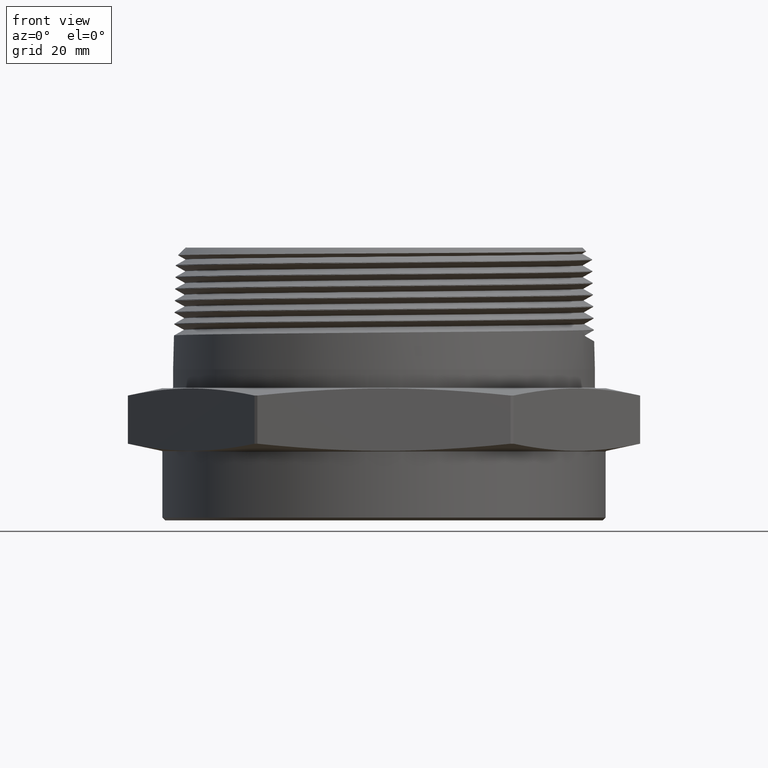
[diagram: clean part render]
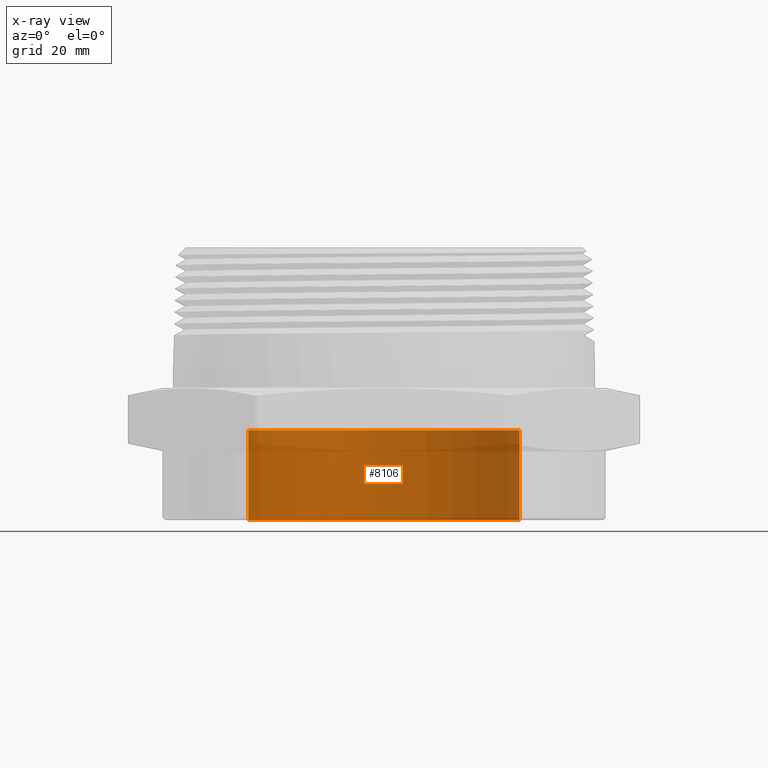
[diagram: x-ray — body ghosted, one internal face saturated and labeled with its STEP entity id]
A machine part, front view, then the same camera in x-ray: the body is ghosted and one INTERNAL B-rep face — a face not visible from any outside direction — is saturated and labeled: STEP entity #8106.
In plain terms, the highlighted cylindrical surface (partial cylindrical patch) has radius 36.703 mm, axis along (-0, -0, -1).
Its self-contained STEP definition (entity closure, byte-faithful):
#378 = AXIS2_PLACEMENT_3D ( 'NONE', #7613, #7609, #7610 ) ;
#621 = EDGE_CURVE ( 'NONE', #2009, #2035, #8017, .T. ) ;
#622 = EDGE_CURVE ( 'NONE', #2009, #2012, #8019, .T. ) ;
#623 = EDGE_CURVE ( 'NONE', #2035, #2036, #8021, .T. ) ;
#624 = EDGE_CURVE ( 'NONE', #2012, #2036, #8024, .T. ) ;
#651 = AXIS2_PLACEMENT_3D ( 'NONE', #3599, #3601, #2604 ) ;
#652 = AXIS2_PLACEMENT_3D ( 'NONE', #2605, #2606, #2607 ) ;
#2009 = VERTEX_POINT ( 'NONE', #2699 ) ;
#2012 = VERTEX_POINT ( 'NONE', #2702 ) ;
#2035 = VERTEX_POINT ( 'NONE', #2725 ) ;
#2036 = VERTEX_POINT ( 'NONE', #2726 ) ;
#2047 = ORIENTED_EDGE ( 'NONE', *, *, #622, .F. ) ;
#2048 = ORIENTED_EDGE ( 'NONE', *, *, #621, .T. ) ;
#2049 = ORIENTED_EDGE ( 'NONE', *, *, #623, .T. ) ;
#2050 = ORIENTED_EDGE ( 'NONE', *, *, #624, .F. ) ;
#2604 = DIRECTION ( 'NONE',  ( 1.000000000000000000, 0.0000000000000000000, 0.0000000000000000000 ) ) ;
#2605 = CARTESIAN_POINT ( 'NONE',  ( 0.0000000000000000000, 0.0000000000000000000, 0.0000000000000000000 ) ) ;
#2606 = DIRECTION ( 'NONE',  ( 0.0000000000000000000, 0.0000000000000000000, 1.000000000000000000 ) ) ;
#2607 = DIRECTION ( 'NONE',  ( 1.000000000000000000, 0.0000000000000000000, 0.0000000000000000000 ) ) ;
#2699 = CARTESIAN_POINT ( 'NONE',  ( 1.444999999999999800, 1.769614624767924500E-016, 0.9599999999999999600 ) ) ;
#2702 = CARTESIAN_POINT ( 'NONE',  ( -1.444999999999999800, 0.0000000000000000000, 0.9599999999999999600 ) ) ;
#2725 = CARTESIAN_POINT ( 'NONE',  ( 1.444999999999999800, 1.769614624767924500E-016, 0.0000000000000000000 ) ) ;
#2726 = CARTESIAN_POINT ( 'NONE',  ( -1.444999999999999800, 0.0000000000000000000, 0.0000000000000000000 ) ) ;
#3557 = FACE_OUTER_BOUND ( 'NONE', #7828, .T. ) ;
#3564 = CYLINDRICAL_SURFACE ( 'NONE', #378, 1.444999999999999800 ) ;
#3578 = CARTESIAN_POINT ( 'NONE',  ( 1.444999999999999800, 1.769614624767924500E-016, 0.9599999999999999600 ) ) ;
#3590 = DIRECTION ( 'NONE',  ( -0.0000000000000000000, -0.0000000000000000000, -1.000000000000000000 ) ) ;
#3593 = CARTESIAN_POINT ( 'NONE',  ( -1.444999999999999800, 0.0000000000000000000, 0.9599999999999999600 ) ) ;
#3596 = DIRECTION ( 'NONE',  ( -0.0000000000000000000, -0.0000000000000000000, -1.000000000000000000 ) ) ;
#3599 = CARTESIAN_POINT ( 'NONE',  ( 0.0000000000000000000, 0.0000000000000000000, 0.9599999999999999600 ) ) ;
#3601 = DIRECTION ( 'NONE',  ( 0.0000000000000000000, 0.0000000000000000000, 1.000000000000000000 ) ) ;
#7609 = DIRECTION ( 'NONE',  ( -0.0000000000000000000, -0.0000000000000000000, -1.000000000000000000 ) ) ;
#7610 = DIRECTION ( 'NONE',  ( -1.000000000000000000, 0.0000000000000000000, 0.0000000000000000000 ) ) ;
#7613 = CARTESIAN_POINT ( 'NONE',  ( 0.0000000000000000000, 0.0000000000000000000, 0.9599999999999999600 ) ) ;
#7828 = EDGE_LOOP ( 'NONE', ( #2047, #2048, #2049, #2050 ) ) ;
#8017 = LINE ( 'NONE', #3578, #8022 ) ;
#8019 = CIRCLE ( 'NONE', #651, 1.444999999999999800 ) ;
#8021 = CIRCLE ( 'NONE', #652, 1.444999999999999800 ) ;
#8022 = VECTOR ( 'NONE', #3590, 39.37007874015748100 ) ;
#8024 = LINE ( 'NONE', #3593, #8026 ) ;
#8026 = VECTOR ( 'NONE', #3596, 39.37007874015748100 ) ;
#8106 = ADVANCED_FACE ( 'NONE', ( #3557 ), #3564, .T. ) ;